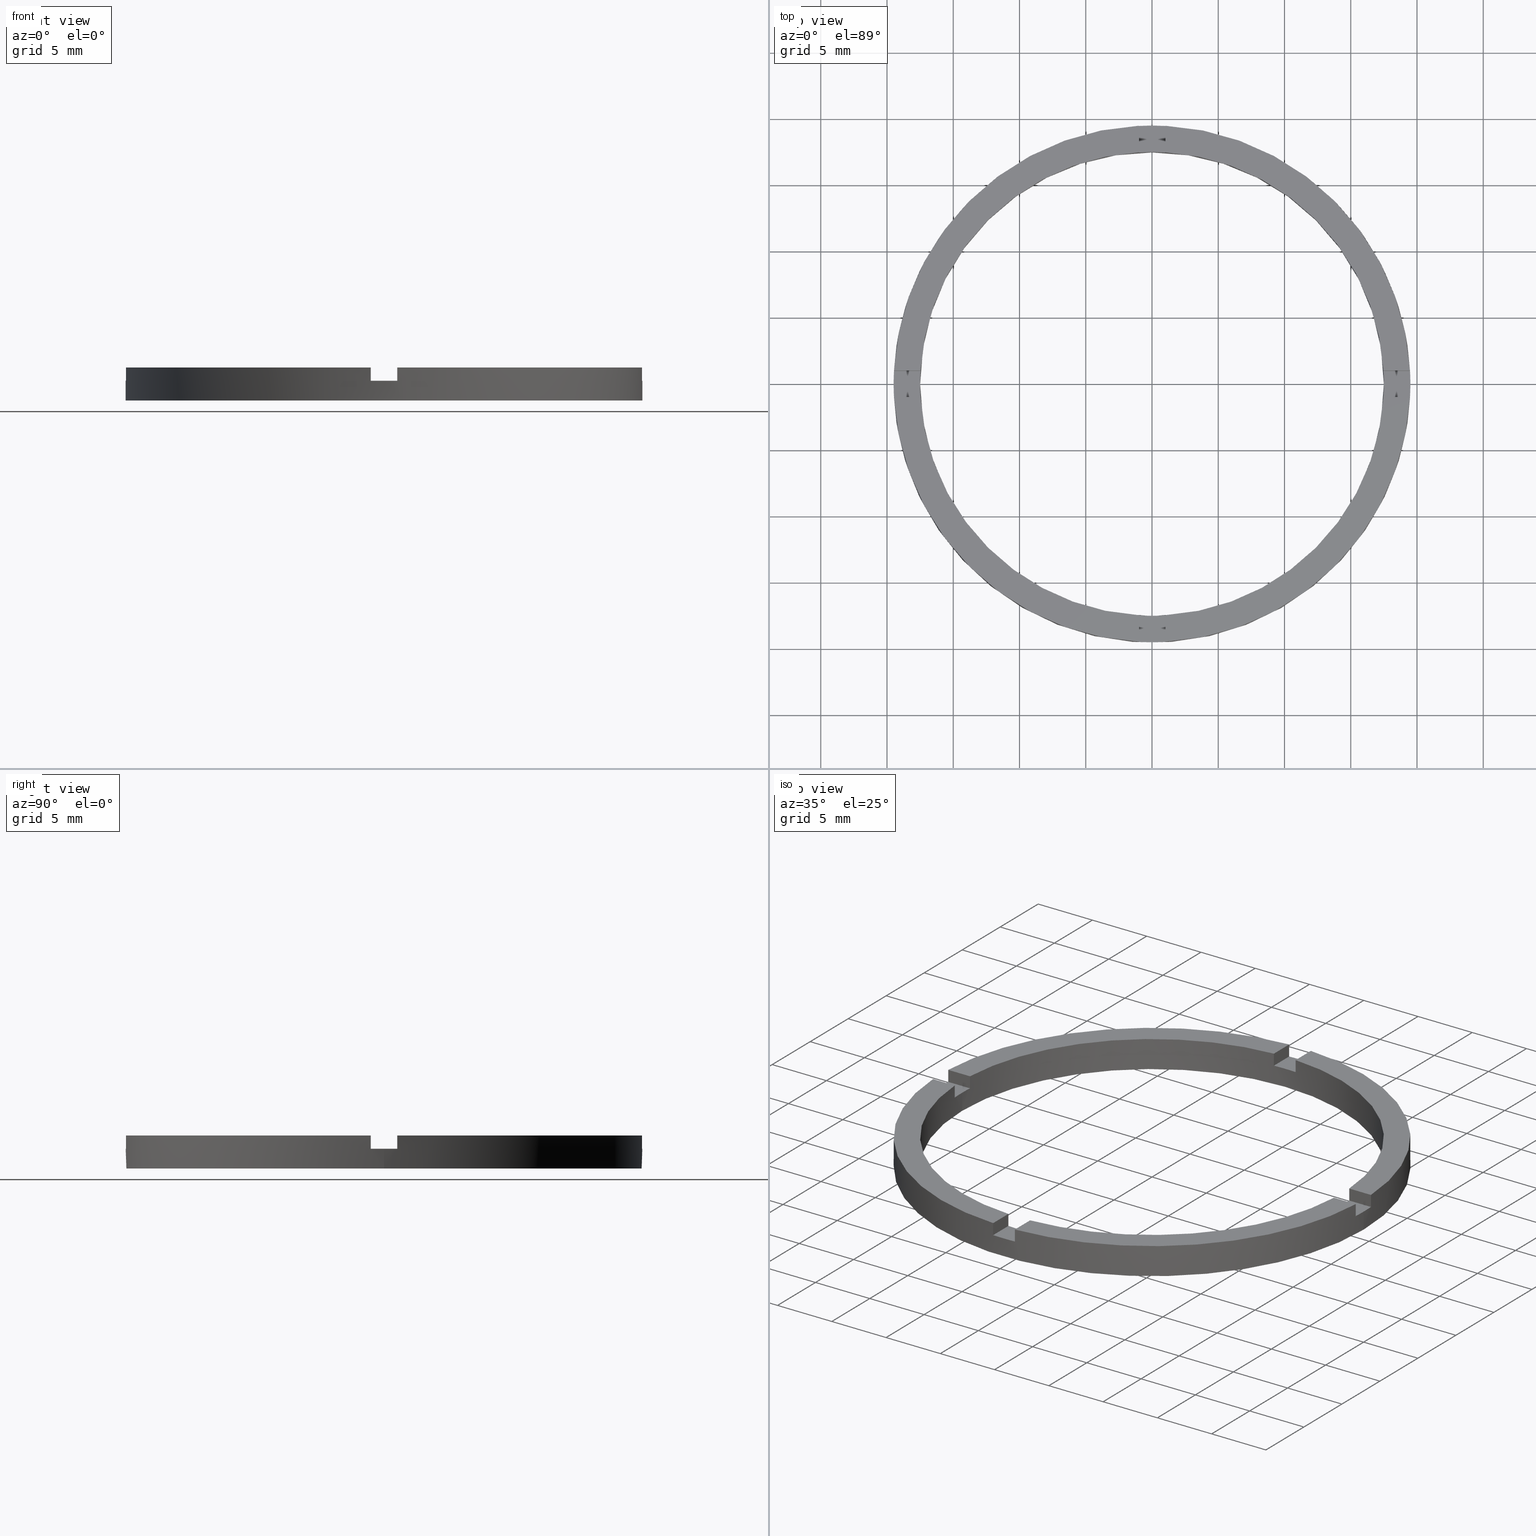
[diagram: canonical four-view strip — front | top / right | iso, engineering-drawing reading convention]
A machine part, canonical four-view strip (front | top / right | iso — engineering-drawing reading convention). The complete STEP part file that produces these views, byte-faithful:
ISO-10303-21;
HEADER;
FILE_DESCRIPTION (( 'STEP AP203' ),
    '1' );
FILE_NAME ('514083.step',
    '2024-12-26T02:35:55',
    ( 'MSI' ),
    ( '' ),
    'SwSTEP 2.0',
    'SolidWorks 2020',
    '' );
FILE_SCHEMA (( 'CONFIG_CONTROL_DESIGN' ));
ENDSEC;

DATA;
#1 = DIRECTION ( 'NONE',  ( 1.000000000000000000, 0.000000000000000000, 0.000000000000000000 ) ) ;
#2 = APPROVAL_PERSON_ORGANIZATION ( #267, #516, #78 ) ;
#3 = EDGE_CURVE ( 'NONE', #455, #92, #60, .T. ) ;
#4 = COORDINATED_UNIVERSAL_TIME_OFFSET ( 8, 0, .AHEAD. ) ;
#5 = DIRECTION ( 'NONE',  ( -1.000000000000000000, 0.000000000000000000, 0.000000000000000000 ) ) ;
#6 = CARTESIAN_POINT ( 'NONE',  ( 0.000000000000000000, 0.000000000000000000, 1.500000000000000000 ) ) ;
#7 = DIRECTION ( 'NONE',  ( -1.000000000000000000, -4.336808689942017120E-17, -0.000000000000000000 ) ) ;
#8 = CARTESIAN_POINT ( 'NONE',  ( 19.50000000000000000, 2.388061258337338939E-15, 2.500000000000000000 ) ) ;
#9 = DIRECTION ( 'NONE',  ( 1.000000000000000000, 0.000000000000000000, 0.000000000000000000 ) ) ;
#10 = DIRECTION ( 'NONE',  ( 0.000000000000000000, 0.000000000000000000, 1.000000000000000000 ) ) ;
#11 = COORDINATED_UNIVERSAL_TIME_OFFSET ( 8, 0, .AHEAD. ) ;
#12 = CARTESIAN_POINT ( 'NONE',  ( 0.000000000000000000, 0.000000000000000000, 2.500000000000000000 ) ) ;
#13 = PERSON_AND_ORGANIZATION ( #398, #776 ) ;
#14 = CARTESIAN_POINT ( 'NONE',  ( 0.000000000000000000, 0.000000000000000000, 1.500000000000000000 ) ) ;
#15 = PLANE ( 'NONE',  #533 ) ;
#16 = EDGE_CURVE ( 'NONE', #455, #639, #582, .T. ) ;
#17 = AXIS2_PLACEMENT_3D ( 'NONE', #35, #449, #145 ) ;
#18 = DIRECTION ( 'NONE',  ( 0.000000000000000000, 0.000000000000000000, 1.000000000000000000 ) ) ;
#19 = CALENDAR_DATE ( 2024, 26, 12 ) ;
#20 = VECTOR ( 'NONE', #324, 1000.000000000000000 ) ;
#21 = CARTESIAN_POINT ( 'NONE',  ( -9.500000000000184741, 0.9999999999999774625, 1.500000000000000000 ) ) ;
#22 = LOCAL_TIME ( 10, 35, 55.00000000000000000, #532 ) ;
#23 = FACE_OUTER_BOUND ( 'NONE', #202, .T. ) ;
#24 = CARTESIAN_POINT ( 'NONE',  ( 19.47434209415045459, 0.9999999999998414602, 1.500000000000000000 ) ) ;
#25 = VECTOR ( 'NONE', #529, 1000.000000000000000 ) ;
#26 = LINE ( 'NONE', #744, #537 ) ;
#27 = DATE_AND_TIME ( #19, #22 ) ;
#28 = EDGE_CURVE ( 'NONE', #725, #525, #576, .T. ) ;
#29 = AXIS2_PLACEMENT_3D ( 'NONE', #540, #491, #243 ) ;
#30 = FACE_OUTER_BOUND ( 'NONE', #382, .T. ) ;
#31 = VECTOR ( 'NONE', #409, 1000.000000000000000 ) ;
#32 = APPROVAL_STATUS ( 'not_yet_approved' ) ;
#33 = VECTOR ( 'NONE', #668, 1000.000000000000000 ) ;
#34 = LINE ( 'NONE', #565, #20 ) ;
#35 = CARTESIAN_POINT ( 'NONE',  ( 0.000000000000000000, 0.000000000000000000, 2.500000000000000000 ) ) ;
#36 = FACE_OUTER_BOUND ( 'NONE', #448, .T. ) ;
#37 = ADVANCED_FACE ( 'NONE', ( #30 ), #269, .T. ) ;
#38 = DIRECTION ( 'NONE',  ( 1.000000000000000000, 0.000000000000000000, -0.000000000000000000 ) ) ;
#39 = LINE ( 'NONE', #74, #292 ) ;
#40 = LINE ( 'NONE', #94, #284 ) ;
#41 = DIRECTION ( 'NONE',  ( -1.734723475976806848E-16, 1.000000000000000000, 0.000000000000000000 ) ) ;
#42 = EDGE_CURVE ( 'NONE', #468, #632, #300, .T. ) ;
#43 = LINE ( 'NONE', #220, #52 ) ;
#44 = VECTOR ( 'NONE', #547, 1000.000000000000000 ) ;
#45 = DIRECTION ( 'NONE',  ( -1.301042606982605074E-16, 1.000000000000000000, -0.000000000000000000 ) ) ;
#46 = CYLINDRICAL_SURFACE ( 'NONE', #452, 19.50000000000000000 ) ;
#47 = DIRECTION ( 'NONE',  ( -1.000000000000000000, 0.000000000000000000, 0.000000000000000000 ) ) ;
#48 = VECTOR ( 'NONE', #690, 1000.000000000000000 ) ;
#49 = VECTOR ( 'NONE', #740, 1000.000000000000000 ) ;
#50 = EDGE_CURVE ( 'NONE', #381, #517, #566, .T. ) ;
#51 = CIRCLE ( 'NONE', #17, 17.50000000000000355 ) ;
#52 = VECTOR ( 'NONE', #583, 1000.000000000000000 ) ;
#53 = CARTESIAN_POINT ( 'NONE',  ( 0.9999999999999742428, 19.47434209415044393, 1.500000000000000000 ) ) ;
#54 = FACE_OUTER_BOUND ( 'NONE', #100, .T. ) ;
#55 = ORIENTED_EDGE ( 'NONE', *, *, #530, .F. ) ;
#56 = ORIENTED_EDGE ( 'NONE', *, *, #489, .F. ) ;
#57 = ORIENTED_EDGE ( 'NONE', *, *, #311, .T. ) ;
#58 = DIRECTION ( 'NONE',  ( 1.000000000000000000, 0.000000000000000000, 0.000000000000000000 ) ) ;
#59 = CC_DESIGN_PERSON_AND_ORGANIZATION_ASSIGNMENT ( #528, #328, ( #162 ) ) ;
#60 = LINE ( 'NONE', #493, #317 ) ;
#61 = DIRECTION ( 'NONE',  ( 1.000000000000000000, 0.000000000000000000, 0.000000000000000000 ) ) ;
#62 = CARTESIAN_POINT ( 'NONE',  ( 0.000000000000000000, 0.000000000000000000, 1.500000000000000000 ) ) ;
#63 = PLANE ( 'NONE',  #588 ) ;
#64 = DIRECTION ( 'NONE',  ( -1.000000000000000000, -4.336808689942017120E-17, -0.000000000000000000 ) ) ;
#65 =( LENGTH_UNIT ( ) NAMED_UNIT ( * ) SI_UNIT ( .MILLI., .METRE. ) );
#66 = CARTESIAN_POINT ( 'NONE',  ( 0.9999999999999742428, 19.47434209415044393, 2.500000000000000000 ) ) ;
#67 = CARTESIAN_POINT ( 'NONE',  ( 0.000000000000000000, 0.000000000000000000, 0.000000000000000000 ) ) ;
#68 = PLANE ( 'NONE',  #640 ) ;
#69 = DIRECTION ( 'NONE',  ( 1.000000000000000000, 0.000000000000000000, -0.000000000000000000 ) ) ;
#70 = DIRECTION ( 'NONE',  ( 1.734723475976806848E-16, -1.000000000000000000, 0.000000000000000000 ) ) ;
#71 = DIRECTION ( 'NONE',  ( 1.000000000000000000, 1.301042606982605074E-16, 0.000000000000000000 ) ) ;
#72 = DIRECTION ( 'NONE',  ( 1.000000000000000000, 0.000000000000000000, 0.000000000000000000 ) ) ;
#73 = PLANE ( 'NONE',  #291 ) ;
#74 = CARTESIAN_POINT ( 'NONE',  ( -19.47434209415044748, 0.9999999999999756861, 2.500000000000000000 ) ) ;
#75 = DIRECTION ( 'NONE',  ( 1.000000000000000000, 0.000000000000000000, 0.000000000000000000 ) ) ;
#76 = PLANE ( 'NONE',  #363 ) ;
#77 = MANIFOLD_SOLID_BREP ( '�г�-����1', #104 ) ;
#78 = APPROVAL_ROLE ( '' ) ;
#79 = CC_DESIGN_PERSON_AND_ORGANIZATION_ASSIGNMENT ( #263, #757, ( #572 ) ) ;
#80 = CARTESIAN_POINT ( 'NONE',  ( 9.499999999999994671, 0.9999999999998411271, 1.500000000000000000 ) ) ;
#81 = AXIS2_PLACEMENT_3D ( 'NONE', #67, #542, #656 ) ;
#82 = CARTESIAN_POINT ( 'NONE',  ( 0.9999999999998369082, -9.500000000000179412, 1.500000000000000000 ) ) ;
#83 = ADVANCED_FACE ( 'NONE', ( #54 ), #523, .T. ) ;
#84 = DIRECTION ( 'NONE',  ( 0.000000000000000000, 0.000000000000000000, 1.000000000000000000 ) ) ;
#85 = DIRECTION ( 'NONE',  ( -0.000000000000000000, -0.000000000000000000, -1.000000000000000000 ) ) ;
#86 = CARTESIAN_POINT ( 'NONE',  ( 0.9999999999998377964, -17.47140520965616162, 2.500000000000000000 ) ) ;
#87 = ORIENTED_EDGE ( 'NONE', *, *, #287, .F. ) ;
#88 = ORIENTED_EDGE ( 'NONE', *, *, #519, .T. ) ;
#89 = DIRECTION ( 'NONE',  ( -0.000000000000000000, -0.000000000000000000, -1.000000000000000000 ) ) ;
#90 = CC_DESIGN_PERSON_AND_ORGANIZATION_ASSIGNMENT ( #496, #623, ( #652 ) ) ;
#91 = VERTEX_POINT ( 'NONE', #157 ) ;
#92 = VERTEX_POINT ( 'NONE', #394 ) ;
#93 = ORIENTED_EDGE ( 'NONE', *, *, #337, .F. ) ;
#94 = CARTESIAN_POINT ( 'NONE',  ( -19.50000000000000000, 0.000000000000000000, 2.500000000000000000 ) ) ;
#95 = EDGE_CURVE ( 'NONE', #372, #250, #555, .T. ) ;
#96 = VERTEX_POINT ( 'NONE', #746 ) ;
#97 = PLANE ( 'NONE',  #758 ) ;
#98 = EDGE_CURVE ( 'NONE', #212, #630, #562, .T. ) ;
#99 = CARTESIAN_POINT ( 'NONE',  ( 17.47140520965614385, -1.000000000000158762, 2.500000000000000000 ) ) ;
#100 = EDGE_LOOP ( 'NONE', ( #738, #175, #384, #618, #433, #649 ) ) ;
#101 = ORIENTED_EDGE ( 'NONE', *, *, #764, .F. ) ;
#102 = ORIENTED_EDGE ( 'NONE', *, *, #98, .F. ) ;
#103 = AXIS2_PLACEMENT_3D ( 'NONE', #617, #348, #5 ) ;
#104 = CLOSED_SHELL ( 'NONE', ( #755, #329, #760, #457, #327, #37, #627, #393, #222, #524, #219, #261, #634, #686, #385, #156, #271, #83, #515, #697, #140 ) ) ;
#105 = CARTESIAN_POINT ( 'NONE',  ( 0.000000000000000000, 0.000000000000000000, 2.500000000000000000 ) ) ;
#106 = ORIENTED_EDGE ( 'NONE', *, *, #662, .F. ) ;
#107 = PRODUCT_RELATED_PRODUCT_CATEGORY ( 'detail', '', ( #652 ) ) ;
#108 = ORIENTED_EDGE ( 'NONE', *, *, #435, .T. ) ;
#109 = VERTEX_POINT ( 'NONE', #444 ) ;
#110 = EDGE_CURVE ( 'NONE', #254, #525, #286, .T. ) ;
#111 = AXIS2_PLACEMENT_3D ( 'NONE', #486, #70, #127 ) ;
#112 = EDGE_LOOP ( 'NONE', ( #660, #115, #734, #643 ) ) ;
#113 = DIRECTION ( 'NONE',  ( 0.000000000000000000, 0.000000000000000000, 1.000000000000000000 ) ) ;
#114 = EDGE_LOOP ( 'NONE', ( #731, #431, #702, #653 ) ) ;
#115 = ORIENTED_EDGE ( 'NONE', *, *, #213, .F. ) ;
#116 = DIRECTION ( 'NONE',  ( 1.000000000000000000, -0.000000000000000000, 0.000000000000000000 ) ) ;
#117 = CARTESIAN_POINT ( 'NONE',  ( 0.000000000000000000, 0.000000000000000000, 2.500000000000000000 ) ) ;
#118 = ORIENTED_EDGE ( 'NONE', *, *, #28, .T. ) ;
#119 = VERTEX_POINT ( 'NONE', #775 ) ;
#120 = DIRECTION ( 'NONE',  ( 0.000000000000000000, 0.000000000000000000, 1.000000000000000000 ) ) ;
#121 = CARTESIAN_POINT ( 'NONE',  ( -19.47434209415044748, 0.9999999999999756861, 1.500000000000000000 ) ) ;
#122 = ORIENTED_EDGE ( 'NONE', *, *, #699, .T. ) ;
#123 = ORIENTED_EDGE ( 'NONE', *, *, #601, .F. ) ;
#124 = DIRECTION ( 'NONE',  ( 1.000000000000000000, 0.000000000000000000, 0.000000000000000000 ) ) ;
#125 = AXIS2_PLACEMENT_3D ( 'NONE', #312, #391, #72 ) ;
#126 = ORIENTED_EDGE ( 'NONE', *, *, #459, .F. ) ;
#127 = DIRECTION ( 'NONE',  ( 1.000000000000000000, 1.734723475976806848E-16, 0.000000000000000000 ) ) ;
#128 = ORIENTED_EDGE ( 'NONE', *, *, #743, .F. ) ;
#129 = ORIENTED_EDGE ( 'NONE', *, *, #592, .F. ) ;
#130 = DIRECTION ( 'NONE',  ( 1.000000000000000000, 0.000000000000000000, 0.000000000000000000 ) ) ;
#131 = CARTESIAN_POINT ( 'NONE',  ( -9.500000000000184741, -1.000000000000022649, 2.500000000000000000 ) ) ;
#132 = DIRECTION ( 'NONE',  ( 0.000000000000000000, 0.000000000000000000, 1.000000000000000000 ) ) ;
#133 = DIRECTION ( 'NONE',  ( 0.000000000000000000, 0.000000000000000000, 1.000000000000000000 ) ) ;
#134 = DIRECTION ( 'NONE',  ( 0.000000000000000000, 0.000000000000000000, -1.000000000000000000 ) ) ;
#135 = CARTESIAN_POINT ( 'NONE',  ( 0.000000000000000000, 0.000000000000000000, 1.500000000000000000 ) ) ;
#136 = DIRECTION ( 'NONE',  ( -0.000000000000000000, -0.000000000000000000, -1.000000000000000000 ) ) ;
#137 = ORIENTED_EDGE ( 'NONE', *, *, #485, .F. ) ;
#138 = CC_DESIGN_PERSON_AND_ORGANIZATION_ASSIGNMENT ( #502, #753, ( #584 ) ) ;
#139 = CARTESIAN_POINT ( 'NONE',  ( 0.000000000000000000, 0.000000000000000000, 2.500000000000000000 ) ) ;
#140 = ADVANCED_FACE ( 'NONE', ( #551 ), #76, .T. ) ;
#141 = LINE ( 'NONE', #322, #399 ) ;
#142 = VECTOR ( 'NONE', #215, 1000.000000000000000 ) ;
#143 = PERSON_AND_ORGANIZATION_ROLE ( 'design_supplier' ) ;
#144 = VECTOR ( 'NONE', #406, 1000.000000000000000 ) ;
#145 = DIRECTION ( 'NONE',  ( 1.000000000000000000, 0.000000000000000000, 0.000000000000000000 ) ) ;
#146 = ORIENTED_EDGE ( 'NONE', *, *, #498, .T. ) ;
#147 = VECTOR ( 'NONE', #277, 1000.000000000000000 ) ;
#148 = AXIS2_PLACEMENT_3D ( 'NONE', #559, #608, #595 ) ;
#149 = CIRCLE ( 'NONE', #677, 17.50000000000000355 ) ;
#150 = DIRECTION ( 'NONE',  ( 0.000000000000000000, 1.000000000000000000, 0.000000000000000000 ) ) ;
#151 = CIRCLE ( 'NONE', #730, 19.50000000000000000 ) ;
#152 = CC_DESIGN_APPROVAL ( #516, ( #162 ) ) ;
#153 = CIRCLE ( 'NONE', #81, 19.50000000000000000 ) ;
#154 = FACE_OUTER_BOUND ( 'NONE', #246, .T. ) ;
#155 = AXIS2_PLACEMENT_3D ( 'NONE', #80, #383, #513 ) ;
#156 = ADVANCED_FACE ( 'NONE', ( #544 ), #326, .F. ) ;
#157 = CARTESIAN_POINT ( 'NONE',  ( -19.47434209415044748, -1.000000000000024203, 1.500000000000000000 ) ) ;
#158 = FACE_OUTER_BOUND ( 'NONE', #112, .T. ) ;
#159 = CYLINDRICAL_SURFACE ( 'NONE', #334, 19.50000000000000000 ) ;
#160 = CIRCLE ( 'NONE', #166, 17.50000000000000355 ) ;
#161 = VECTOR ( 'NONE', #230, 1000.000000000000000 ) ;
#162 = SECURITY_CLASSIFICATION ( '', '', #456 ) ;
#163 = CIRCLE ( 'NONE', #752, 19.50000000000000000 ) ;
#164 = FACE_OUTER_BOUND ( 'NONE', #114, .T. ) ;
#165 = EDGE_CURVE ( 'NONE', #358, #468, #571, .T. ) ;
#166 = AXIS2_PLACEMENT_3D ( 'NONE', #483, #400, #58 ) ;
#167 = FACE_OUTER_BOUND ( 'NONE', #510, .T. ) ;
#168 = ORIENTED_EDGE ( 'NONE', *, *, #708, .F. ) ;
#169 = VECTOR ( 'NONE', #721, 1000.000000000000000 ) ;
#170 = EDGE_LOOP ( 'NONE', ( #346, #218, #726, #211 ) ) ;
#171 = CIRCLE ( 'NONE', #471, 19.50000000000000000 ) ;
#172 = LINE ( 'NONE', #283, #421 ) ;
#173 = VERTEX_POINT ( 'NONE', #518 ) ;
#174 = VECTOR ( 'NONE', #187, 1000.000000000000000 ) ;
#175 = ORIENTED_EDGE ( 'NONE', *, *, #729, .T. ) ;
#176 = CYLINDRICAL_SURFACE ( 'NONE', #103, 17.50000000000000355 ) ;
#177 = DIRECTION ( 'NONE',  ( 1.000000000000000000, 0.000000000000000000, 0.000000000000000000 ) ) ;
#178 = VERTEX_POINT ( 'NONE', #756 ) ;
#179 = CARTESIAN_POINT ( 'NONE',  ( 19.47434209415044037, -1.000000000000158540, 1.500000000000000000 ) ) ;
#180 = ORIENTED_EDGE ( 'NONE', *, *, #338, .T. ) ;
#181 = CARTESIAN_POINT ( 'NONE',  ( -1.000000000000025313, 9.500000000000000000, 2.500000000000000000 ) ) ;
#182 = ORIENTED_EDGE ( 'NONE', *, *, #245, .F. ) ;
#183 = AXIS2_PLACEMENT_3D ( 'NONE', #536, #201, #682 ) ;
#184 = ORIENTED_EDGE ( 'NONE', *, *, #3, .F. ) ;
#185 = DIRECTION ( 'NONE',  ( 0.000000000000000000, 0.000000000000000000, 1.000000000000000000 ) ) ;
#186 = EDGE_LOOP ( 'NONE', ( #700, #479, #106, #184 ) ) ;
#187 = DIRECTION ( 'NONE',  ( 0.000000000000000000, 0.000000000000000000, 1.000000000000000000 ) ) ;
#188 = CARTESIAN_POINT ( 'NONE',  ( 0.000000000000000000, 0.000000000000000000, 1.500000000000000000 ) ) ;
#189 = ORIENTED_EDGE ( 'NONE', *, *, #245, .T. ) ;
#190 = ORIENTED_EDGE ( 'NONE', *, *, #3, .T. ) ;
#191 = CARTESIAN_POINT ( 'NONE',  ( -17.50000000000000355, 0.000000000000000000, 0.000000000000000000 ) ) ;
#192 = ORIENTED_EDGE ( 'NONE', *, *, #214, .F. ) ;
#193 = DIRECTION ( 'NONE',  ( -0.000000000000000000, -0.000000000000000000, -1.000000000000000000 ) ) ;
#194 = CARTESIAN_POINT ( 'NONE',  ( 0.9999999999999742428, 17.47140520965614741, 1.500000000000000000 ) ) ;
#195 = ORIENTED_EDGE ( 'NONE', *, *, #459, .T. ) ;
#196 = CC_DESIGN_APPROVAL ( #239, ( #572 ) ) ;
#197 = ORIENTED_EDGE ( 'NONE', *, *, #714, .T. ) ;
#198 = DIRECTION ( 'NONE',  ( -0.000000000000000000, 0.000000000000000000, 1.000000000000000000 ) ) ;
#199 = ORIENTED_EDGE ( 'NONE', *, *, #714, .F. ) ;
#200 = ORIENTED_EDGE ( 'NONE', *, *, #325, .T. ) ;
#201 = DIRECTION ( 'NONE',  ( 0.000000000000000000, 0.000000000000000000, 1.000000000000000000 ) ) ;
#202 = EDGE_LOOP ( 'NONE', ( #638, #475, #616, #648 ) ) ;
#203 = AXIS2_PLACEMENT_3D ( 'NONE', #105, #113, #727 ) ;
#204 = VERTEX_POINT ( 'NONE', #205 ) ;
#205 = CARTESIAN_POINT ( 'NONE',  ( -17.50000000000000355, 0.000000000000000000, 1.500000000000000000 ) ) ;
#206 = ORIENTED_EDGE ( 'NONE', *, *, #50, .T. ) ;
#207 = ORIENTED_EDGE ( 'NONE', *, *, #221, .T. ) ;
#208 = CARTESIAN_POINT ( 'NONE',  ( 0.9999999999998369082, -9.500000000000179412, 2.500000000000000000 ) ) ;
#209 = ORIENTED_EDGE ( 'NONE', *, *, #717, .T. ) ;
#210 = ORIENTED_EDGE ( 'NONE', *, *, #754, .F. ) ;
#211 = ORIENTED_EDGE ( 'NONE', *, *, #707, .F. ) ;
#212 = VERTEX_POINT ( 'NONE', #368 ) ;
#213 = EDGE_CURVE ( 'NONE', #347, #725, #51, .T. ) ;
#214 = EDGE_CURVE ( 'NONE', #705, #381, #43, .T. ) ;
#215 = DIRECTION ( 'NONE',  ( -1.301042606982605074E-16, 1.000000000000000000, -0.000000000000000000 ) ) ;
#216 = ORIENTED_EDGE ( 'NONE', *, *, #526, .T. ) ;
#217 = VERTEX_POINT ( 'NONE', #268 ) ;
#218 = ORIENTED_EDGE ( 'NONE', *, *, #16, .T. ) ;
#219 = ADVANCED_FACE ( 'NONE', ( #294 ), #759, .F. ) ;
#220 = CARTESIAN_POINT ( 'NONE',  ( -9.500000000000184741, 0.9999999999999774625, 1.500000000000000000 ) ) ;
#221 = EDGE_CURVE ( 'NONE', #381, #639, #39, .T. ) ;
#222 = ADVANCED_FACE ( 'NONE', ( #305 ), #293, .F. ) ;
#223 = AXIS2_PLACEMENT_3D ( 'NONE', #314, #508, #75 ) ;
#224 = CARTESIAN_POINT ( 'NONE',  ( -1.000000000000024869, 17.47140520965614741, 1.500000000000000000 ) ) ;
#225 = DIRECTION ( 'NONE',  ( -0.000000000000000000, -0.000000000000000000, -1.000000000000000000 ) ) ;
#226 = DESIGN_CONTEXT ( 'detailed design', #575, 'design' ) ;
#227 = EDGE_CURVE ( 'NONE', #119, #639, #34, .T. ) ;
#228 = AXIS2_PLACEMENT_3D ( 'NONE', #636, #84, #318 ) ;
#229 = CARTESIAN_POINT ( 'NONE',  ( 0.000000000000000000, 0.000000000000000000, 2.500000000000000000 ) ) ;
#230 = DIRECTION ( 'NONE',  ( 1.000000000000000000, 4.336808689942017120E-17, 0.000000000000000000 ) ) ;
#231 = PERSON_AND_ORGANIZATION ( #398, #776 ) ;
#232 = DIRECTION ( 'NONE',  ( -0.000000000000000000, -0.000000000000000000, -1.000000000000000000 ) ) ;
#233 = CALENDAR_DATE ( 2024, 26, 12 ) ;
#234 = DATE_AND_TIME ( #233, #766 ) ;
#235 = VERTEX_POINT ( 'NONE', #375 ) ;
#236 = EDGE_CURVE ( 'NONE', #715, #720, #564, .T. ) ;
#237 = CARTESIAN_POINT ( 'NONE',  ( 17.47140520965614385, -1.000000000000158762, 2.500000000000000000 ) ) ;
#238 = CARTESIAN_POINT ( 'NONE',  ( -1.000000000000162981, -9.500000000000179412, 1.500000000000000000 ) ) ;
#239 = APPROVAL ( #512, 'δָ��' ) ;
#240 = DIRECTION ( 'NONE',  ( 0.000000000000000000, 0.000000000000000000, 1.000000000000000000 ) ) ;
#241 = ORIENTED_EDGE ( 'NONE', *, *, #519, .F. ) ;
#242 = CARTESIAN_POINT ( 'NONE',  ( -1.000000000000024869, 17.47140520965614741, 2.500000000000000000 ) ) ;
#243 = DIRECTION ( 'NONE',  ( 1.000000000000000000, 0.000000000000000000, 0.000000000000000000 ) ) ;
#244 = CARTESIAN_POINT ( 'NONE',  ( 0.9999999999998369082, -9.500000000000179412, 1.500000000000000000 ) ) ;
#245 = EDGE_CURVE ( 'NONE', #614, #310, #279, .T. ) ;
#246 = EDGE_LOOP ( 'NONE', ( #102, #355, #691, #123, #633, #129, #351, #695, #514, #93, #200, #718 ) ) ;
#247 = VERTEX_POINT ( 'NONE', #467 ) ;
#248 =( NAMED_UNIT ( * ) PLANE_ANGLE_UNIT ( ) SI_UNIT ( $, .RADIAN. ) );
#249 = CC_DESIGN_APPROVAL ( #722, ( #584 ) ) ;
#250 = VERTEX_POINT ( 'NONE', #224 ) ;
#251 = CARTESIAN_POINT ( 'NONE',  ( -17.47140520965615096, -1.000000000000023981, 2.500000000000000000 ) ) ;
#252 = DIRECTION ( 'NONE',  ( 1.000000000000000000, 0.000000000000000000, 0.000000000000000000 ) ) ;
#253 = DATE_AND_TIME ( #783, #780 ) ;
#254 = VERTEX_POINT ( 'NONE', #53 ) ;
#255 = DIRECTION ( 'NONE',  ( 0.000000000000000000, 0.000000000000000000, 1.000000000000000000 ) ) ;
#256 = CARTESIAN_POINT ( 'NONE',  ( 0.000000000000000000, 0.000000000000000000, 2.500000000000000000 ) ) ;
#257 = DIRECTION ( 'NONE',  ( 0.000000000000000000, 0.000000000000000000, 1.000000000000000000 ) ) ;
#258 = EDGE_CURVE ( 'NONE', #178, #632, #290, .T. ) ;
#259 = AXIS2_PLACEMENT_3D ( 'NONE', #742, #558, #549 ) ;
#260 = DIRECTION ( 'NONE',  ( 0.000000000000000000, -0.000000000000000000, 1.000000000000000000 ) ) ;
#261 = ADVANCED_FACE ( 'NONE', ( #280 ), #323, .T. ) ;
#262 = DIRECTION ( 'NONE',  ( 1.000000000000000000, 0.000000000000000000, 0.000000000000000000 ) ) ;
#263 = PERSON_AND_ORGANIZATION ( #398, #776 ) ;
#264 = EDGE_CURVE ( 'NONE', #465, #580, #548, .T. ) ;
#265 = MECHANICAL_CONTEXT ( 'NONE', #563, 'mechanical' ) ;
#266 = AXIS2_PLACEMENT_3D ( 'NONE', #501, #611, #676 ) ;
#267 = PERSON_AND_ORGANIZATION ( #398, #776 ) ;
#268 = CARTESIAN_POINT ( 'NONE',  ( 17.50000000000000355, 2.143131898507868643E-15, 1.500000000000000000 ) ) ;
#269 = PLANE ( 'NONE',  #521 ) ;
#270 = CALENDAR_DATE ( 2024, 26, 12 ) ;
#271 = ADVANCED_FACE ( 'NONE', ( #574 ), #446, .F. ) ;
#272 = CALENDAR_DATE ( 2024, 26, 12 ) ;
#273 = EDGE_CURVE ( 'NONE', #217, #247, #552, .T. ) ;
#274 = DATE_AND_TIME ( #272, #541 ) ;
#275 = VECTOR ( 'NONE', #704, 1000.000000000000000 ) ;
#276 = APPROVAL_DATE_TIME ( #274, #516 ) ;
#277 = DIRECTION ( 'NONE',  ( 0.000000000000000000, 0.000000000000000000, 1.000000000000000000 ) ) ;
#278 =( GEOMETRIC_REPRESENTATION_CONTEXT ( 3 ) GLOBAL_UNCERTAINTY_ASSIGNED_CONTEXT ( ( #441 ) ) GLOBAL_UNIT_ASSIGNED_CONTEXT ( ( #65, #248, #751 ) ) REPRESENTATION_CONTEXT ( 'NONE', 'WORKASPACE' ) );
#279 = LINE ( 'NONE', #772, #282 ) ;
#280 = FACE_OUTER_BOUND ( 'NONE', #778, .T. ) ;
#281 = LOCAL_TIME ( 10, 35, 55.00000000000000000, #11 ) ;
#282 = VECTOR ( 'NONE', #586, 1000.000000000000000 ) ;
#283 = CARTESIAN_POINT ( 'NONE',  ( -9.500000000000184741, -1.000000000000022649, 1.500000000000000000 ) ) ;
#284 = VECTOR ( 'NONE', #225, 1000.000000000000000 ) ;
#285 = EDGE_CURVE ( 'NONE', #455, #372, #297, .T. ) ;
#286 = LINE ( 'NONE', #590, #25 ) ;
#287 = EDGE_CURVE ( 'NONE', #520, #109, #573, .T. ) ;
#288 = VECTOR ( 'NONE', #749, 1000.000000000000000 ) ;
#289 = CARTESIAN_POINT ( 'NONE',  ( 0.000000000000000000, 0.000000000000000000, 0.000000000000000000 ) ) ;
#290 = LINE ( 'NONE', #86, #275 ) ;
#291 = AXIS2_PLACEMENT_3D ( 'NONE', #256, #424, #488 ) ;
#292 = VECTOR ( 'NONE', #607, 1000.000000000000000 ) ;
#293 = CYLINDRICAL_SURFACE ( 'NONE', #612, 17.50000000000000355 ) ;
#294 = FACE_OUTER_BOUND ( 'NONE', #644, .T. ) ;
#295 = DIRECTION ( 'NONE',  ( -1.000000000000000000, 0.000000000000000000, 0.000000000000000000 ) ) ;
#296 = DIRECTION ( 'NONE',  ( 1.000000000000000000, 0.000000000000000000, -0.000000000000000000 ) ) ;
#297 = LINE ( 'NONE', #181, #31 ) ;
#298 = AXIS2_PLACEMENT_3D ( 'NONE', #117, #349, #724 ) ;
#299 = FACE_OUTER_BOUND ( 'NONE', #362, .T. ) ;
#300 = LINE ( 'NONE', #82, #557 ) ;
#301 = VECTOR ( 'NONE', #357, 1000.000000000000000 ) ;
#302 = DIRECTION ( 'NONE',  ( 1.000000000000000000, 0.000000000000000000, 0.000000000000000000 ) ) ;
#303 = LINE ( 'NONE', #600, #301 ) ;
#304 = VECTOR ( 'NONE', #64, 1000.000000000000000 ) ;
#305 = FACE_OUTER_BOUND ( 'NONE', #635, .T. ) ;
#306 = CARTESIAN_POINT ( 'NONE',  ( -17.47140520965615096, 0.9999999999999761302, 1.500000000000000000 ) ) ;
#307 = DIRECTION ( 'NONE',  ( 0.000000000000000000, 1.000000000000000000, 0.000000000000000000 ) ) ;
#308 = VECTOR ( 'NONE', #307, 1000.000000000000000 ) ;
#309 = DIRECTION ( 'NONE',  ( 0.000000000000000000, 0.000000000000000000, 1.000000000000000000 ) ) ;
#310 = VERTEX_POINT ( 'NONE', #594 ) ;
#311 = EDGE_CURVE ( 'NONE', #366, #254, #560, .T. ) ;
#312 = CARTESIAN_POINT ( 'NONE',  ( 0.000000000000000000, 0.000000000000000000, 2.500000000000000000 ) ) ;
#313 = ORIENTED_EDGE ( 'NONE', *, *, #110, .F. ) ;
#314 = CARTESIAN_POINT ( 'NONE',  ( 0.000000000000000000, 0.000000000000000000, 2.500000000000000000 ) ) ;
#315 = ORIENTED_EDGE ( 'NONE', *, *, #388, .F. ) ;
#316 = CARTESIAN_POINT ( 'NONE',  ( -19.47434209415044748, 0.9999999999999756861, 2.500000000000000000 ) ) ;
#317 = VECTOR ( 'NONE', #89, 1000.000000000000000 ) ;
#318 = DIRECTION ( 'NONE',  ( 1.000000000000000000, 0.000000000000000000, -0.000000000000000000 ) ) ;
#319 = CARTESIAN_POINT ( 'NONE',  ( -17.47140520965615096, -1.000000000000023981, 1.500000000000000000 ) ) ;
#320 = DIRECTION ( 'NONE',  ( -0.000000000000000000, -0.000000000000000000, -1.000000000000000000 ) ) ;
#321 = CARTESIAN_POINT ( 'NONE',  ( -19.50000000000000000, 0.000000000000000000, 0.000000000000000000 ) ) ;
#322 = CARTESIAN_POINT ( 'NONE',  ( -19.47434209415044748, -1.000000000000024203, 2.500000000000000000 ) ) ;
#323 = PLANE ( 'NONE',  #774 ) ;
#324 = DIRECTION ( 'NONE',  ( -1.000000000000000000, -1.734723475976806848E-16, 0.000000000000000000 ) ) ;
#325 = EDGE_CURVE ( 'NONE', #517, #657, #40, .T. ) ;
#326 = PLANE ( 'NONE',  #155 ) ;
#327 = ADVANCED_FACE ( 'NONE', ( #36 ), #605, .T. ) ;
#328 = PERSON_AND_ORGANIZATION_ROLE ( 'classification_officer' ) ;
#329 = ADVANCED_FACE ( 'NONE', ( #299 ), #46, .T. ) ;
#330 = EDGE_CURVE ( 'NONE', #109, #310, #303, .T. ) ;
#331 = AXIS2_PLACEMENT_3D ( 'NONE', #420, #198, #302 ) ;
#332 = DIRECTION ( 'NONE',  ( -1.000000000000000000, -1.734723475976806848E-16, 0.000000000000000000 ) ) ;
#333 = DIRECTION ( 'NONE',  ( -0.000000000000000000, -0.000000000000000000, -1.000000000000000000 ) ) ;
#334 = AXIS2_PLACEMENT_3D ( 'NONE', #645, #85, #47 ) ;
#335 = DIRECTION ( 'NONE',  ( 1.000000000000000000, 1.734723475976806848E-16, -0.000000000000000000 ) ) ;
#336 = CARTESIAN_POINT ( 'NONE',  ( 9.499999999999994671, -1.000000000000158984, 1.500000000000000000 ) ) ;
#337 = EDGE_CURVE ( 'NONE', #517, #91, #568, .T. ) ;
#338 = EDGE_CURVE ( 'NONE', #204, #379, #534, .T. ) ;
#339 = DIRECTION ( 'NONE',  ( 0.000000000000000000, 0.000000000000000000, 1.000000000000000000 ) ) ;
#340 = CARTESIAN_POINT ( 'NONE',  ( 19.50000000000000000, 2.388061258337338939E-15, 0.000000000000000000 ) ) ;
#341 = AXIS2_PLACEMENT_3D ( 'NONE', #670, #747, #130 ) ;
#342 = ORIENTED_EDGE ( 'NONE', *, *, #782, .F. ) ;
#343 = DIRECTION ( 'NONE',  ( -1.000000000000000000, 0.000000000000000000, 0.000000000000000000 ) ) ;
#344 = EDGE_LOOP ( 'NONE', ( #56, #209, #378, #710 ) ) ;
#345 = ORIENTED_EDGE ( 'NONE', *, *, #258, .F. ) ;
#346 = ORIENTED_EDGE ( 'NONE', *, *, #285, .F. ) ;
#347 = VERTEX_POINT ( 'NONE', #425 ) ;
#348 = DIRECTION ( 'NONE',  ( -0.000000000000000000, -0.000000000000000000, -1.000000000000000000 ) ) ;
#349 = DIRECTION ( 'NONE',  ( 0.000000000000000000, 0.000000000000000000, 1.000000000000000000 ) ) ;
#350 = ORIENTED_EDGE ( 'NONE', *, *, #581, .F. ) ;
#351 = ORIENTED_EDGE ( 'NONE', *, *, #330, .T. ) ;
#352 = CARTESIAN_POINT ( 'NONE',  ( 0.000000000000000000, 0.000000000000000000, 2.500000000000000000 ) ) ;
#353 = EDGE_LOOP ( 'NONE', ( #651, #458, #315, #712 ) ) ;
#354 = CARTESIAN_POINT ( 'NONE',  ( 0.000000000000000000, 0.000000000000000000, 1.500000000000000000 ) ) ;
#355 = ORIENTED_EDGE ( 'NONE', *, *, #569, .F. ) ;
#356 = CARTESIAN_POINT ( 'NONE',  ( 0.9999999999999742428, 17.47140520965614741, 2.500000000000000000 ) ) ;
#357 = DIRECTION ( 'NONE',  ( 0.000000000000000000, 0.000000000000000000, 1.000000000000000000 ) ) ;
#358 = VERTEX_POINT ( 'NONE', #664 ) ;
#359 = EDGE_LOOP ( 'NONE', ( #87, #216, #189, #625 ) ) ;
#360 = CARTESIAN_POINT ( 'NONE',  ( -1.000000000000161871, -17.47140520965614030, 1.500000000000000000 ) ) ;
#361 = DIRECTION ( 'NONE',  ( -1.301042606982605074E-16, 1.000000000000000000, 0.000000000000000000 ) ) ;
#362 = EDGE_LOOP ( 'NONE', ( #637, #683, #687, #773, #371, #207, #470, #190, #723, #693, #137, #466 ) ) ;
#363 = AXIS2_PLACEMENT_3D ( 'NONE', #556, #260, #389 ) ;
#364 = ORIENTED_EDGE ( 'NONE', *, *, #764, .T. ) ;
#365 = DIRECTION ( 'NONE',  ( -0.000000000000000000, -0.000000000000000000, -1.000000000000000000 ) ) ;
#366 = VERTEX_POINT ( 'NONE', #194 ) ;
#367 = ORIENTED_EDGE ( 'NONE', *, *, #717, .F. ) ;
#368 = CARTESIAN_POINT ( 'NONE',  ( 19.50000000000000000, 2.388061258337338939E-15, 1.500000000000000000 ) ) ;
#369 = CARTESIAN_POINT ( 'NONE',  ( -1.000000000000025313, 9.500000000000000000, 1.500000000000000000 ) ) ;
#370 = DIRECTION ( 'NONE',  ( -0.000000000000000000, -1.000000000000000000, -0.000000000000000000 ) ) ;
#371 = ORIENTED_EDGE ( 'NONE', *, *, #50, .F. ) ;
#372 = VERTEX_POINT ( 'NONE', #242 ) ;
#373 = ORIENTED_EDGE ( 'NONE', *, *, #390, .F. ) ;
#374 = EDGE_LOOP ( 'NONE', ( #771, #477, #126, #128 ) ) ;
#375 = CARTESIAN_POINT ( 'NONE',  ( 19.47434209415044037, -1.000000000000158540, 2.500000000000000000 ) ) ;
#376 = DIRECTION ( 'NONE',  ( 0.000000000000000000, 0.000000000000000000, 1.000000000000000000 ) ) ;
#377 = EDGE_CURVE ( 'NONE', #715, #347, #543, .T. ) ;
#378 = ORIENTED_EDGE ( 'NONE', *, *, #587, .T. ) ;
#379 = VERTEX_POINT ( 'NONE', #191 ) ;
#380 = APPROVAL_ROLE ( '' ) ;
#381 = VERTEX_POINT ( 'NONE', #121 ) ;
#382 = EDGE_LOOP ( 'NONE', ( #182, #101, #461, #122 ) ) ;
#383 = DIRECTION ( 'NONE',  ( -4.336808689942017120E-17, 1.000000000000000000, 0.000000000000000000 ) ) ;
#384 = ORIENTED_EDGE ( 'NONE', *, *, #388, .T. ) ;
#385 = ADVANCED_FACE ( 'NONE', ( #23 ), #429, .T. ) ;
#386 = DATE_TIME_ROLE ( 'creation_date' ) ;
#387 = ORIENTED_EDGE ( 'NONE', *, *, #782, .T. ) ;
#388 = EDGE_CURVE ( 'NONE', #720, #247, #26, .T. ) ;
#389 = DIRECTION ( 'NONE',  ( 1.000000000000000000, 0.000000000000000000, -0.000000000000000000 ) ) ;
#390 = EDGE_CURVE ( 'NONE', #657, #630, #153, .T. ) ;
#391 = DIRECTION ( 'NONE',  ( 0.000000000000000000, 0.000000000000000000, 1.000000000000000000 ) ) ;
#392 = AXIS2_PLACEMENT_3D ( 'NONE', #497, #133, #252 ) ;
#393 = ADVANCED_FACE ( 'NONE', ( #154 ), #159, .T. ) ;
#394 = CARTESIAN_POINT ( 'NONE',  ( -1.000000000000024869, 19.47434209415044393, 1.500000000000000000 ) ) ;
#395 = AXIS2_PLACEMENT_3D ( 'NONE', #188, #10, #61 ) ;
#396 = CARTESIAN_POINT ( 'NONE',  ( 19.47434209415044037, -1.000000000000158540, 2.500000000000000000 ) ) ;
#397 = CIRCLE ( 'NONE', #392, 17.50000000000000355 ) ;
#398 = PERSON ( 'δָ��', 'δָ��', 'δָ��', ('δָ��'), ('δָ��'), ('δָ��') ) ;
#399 = VECTOR ( 'NONE', #732, 1000.000000000000000 ) ;
#400 = DIRECTION ( 'NONE',  ( 0.000000000000000000, -0.000000000000000000, 1.000000000000000000 ) ) ;
#401 = LINE ( 'NONE', #553, #671 ) ;
#402 = VECTOR ( 'NONE', #416, 1000.000000000000000 ) ;
#403 = CIRCLE ( 'NONE', #331, 17.50000000000000355 ) ;
#404 = AXIS2_PLACEMENT_3D ( 'NONE', #354, #492, #602 ) ;
#405 = CIRCLE ( 'NONE', #481, 19.50000000000000000 ) ;
#406 = DIRECTION ( 'NONE',  ( 1.000000000000000000, 4.336808689942017120E-17, 0.000000000000000000 ) ) ;
#407 = FACE_OUTER_BOUND ( 'NONE', #733, .T. ) ;
#408 = LINE ( 'NONE', #654, #169 ) ;
#409 = DIRECTION ( 'NONE',  ( -0.000000000000000000, -1.000000000000000000, -0.000000000000000000 ) ) ;
#410 = CIRCLE ( 'NONE', #29, 19.50000000000000000 ) ;
#411 = CARTESIAN_POINT ( 'NONE',  ( 0.9999999999998373523, -17.47140520965615806, 1.500000000000000000 ) ) ;
#412 = CARTESIAN_POINT ( 'NONE',  ( 0.000000000000000000, 0.000000000000000000, 2.500000000000000000 ) ) ;
#413 = EDGE_LOOP ( 'NONE', ( #453, #622, #579, #57 ) ) ;
#414 = CIRCLE ( 'NONE', #655, 19.50000000000000000 ) ;
#415 = VECTOR ( 'NONE', #309, 1000.000000000000000 ) ;
#416 = DIRECTION ( 'NONE',  ( 0.000000000000000000, 0.000000000000000000, 1.000000000000000000 ) ) ;
#417 = ORIENTED_EDGE ( 'NONE', *, *, #530, .T. ) ;
#418 = FACE_OUTER_BOUND ( 'NONE', #186, .T. ) ;
#419 = FACE_OUTER_BOUND ( 'NONE', #374, .T. ) ;
#420 = CARTESIAN_POINT ( 'NONE',  ( 0.000000000000000000, 0.000000000000000000, 1.500000000000000000 ) ) ;
#421 = VECTOR ( 'NONE', #335, 1000.000000000000000 ) ;
#422 = ORIENTED_EDGE ( 'NONE', *, *, #647, .T. ) ;
#423 = FACE_OUTER_BOUND ( 'NONE', #620, .T. ) ;
#424 = DIRECTION ( 'NONE',  ( 0.000000000000000000, 0.000000000000000000, 1.000000000000000000 ) ) ;
#425 = CARTESIAN_POINT ( 'NONE',  ( 17.47140520965616162, 0.9999999999998412381, 2.500000000000000000 ) ) ;
#426 = LINE ( 'NONE', #673, #696 ) ;
#427 = CARTESIAN_POINT ( 'NONE',  ( -19.50000000000000000, 0.000000000000000000, 1.500000000000000000 ) ) ;
#428 = CIRCLE ( 'NONE', #711, 19.50000000000000000 ) ;
#429 = PLANE ( 'NONE',  #404 ) ;
#430 = EDGE_CURVE ( 'NONE', #464, #235, #666, .T. ) ;
#431 = ORIENTED_EDGE ( 'NONE', *, *, #258, .T. ) ;
#432 = VECTOR ( 'NONE', #339, 1000.000000000000000 ) ;
#433 = ORIENTED_EDGE ( 'NONE', *, *, #538, .F. ) ;
#434 = LINE ( 'NONE', #658, #402 ) ;
#435 = EDGE_CURVE ( 'NONE', #217, #173, #408, .T. ) ;
#436 = ORIENTED_EDGE ( 'NONE', *, *, #337, .T. ) ;
#437 = CIRCLE ( 'NONE', #259, 17.50000000000000355 ) ;
#438 = PLANE ( 'NONE',  #148 ) ;
#439 = ORIENTED_EDGE ( 'NONE', *, *, #435, .F. ) ;
#440 = LINE ( 'NONE', #619, #161 ) ;
#441 = UNCERTAINTY_MEASURE_WITH_UNIT (LENGTH_MEASURE( 1.000000000000000082E-05 ), #65, 'distance_accuracy_value', 'NONE');
#442 = AXIS2_PLACEMENT_3D ( 'NONE', #739, #500, #262 ) ;
#443 = CIRCLE ( 'NONE', #341, 17.50000000000000355 ) ;
#444 = CARTESIAN_POINT ( 'NONE',  ( -1.000000000000161426, -19.47434209415043327, 1.500000000000000000 ) ) ;
#445 = DIRECTION ( 'NONE',  ( 0.000000000000000000, 0.000000000000000000, 1.000000000000000000 ) ) ;
#446 = PLANE ( 'NONE',  #266 ) ;
#447 = CC_DESIGN_SECURITY_CLASSIFICATION ( #162, ( #572 ) ) ;
#448 = EDGE_LOOP ( 'NONE', ( #472, #55, #706, #646 ) ) ;
#449 = DIRECTION ( 'NONE',  ( 0.000000000000000000, 0.000000000000000000, 1.000000000000000000 ) ) ;
#450 = CARTESIAN_POINT ( 'NONE',  ( -17.47140520965615096, -1.000000000000023981, 2.500000000000000000 ) ) ;
#451 = ORIENTED_EDGE ( 'NONE', *, *, #221, .F. ) ;
#452 = AXIS2_PLACEMENT_3D ( 'NONE', #229, #232, #343 ) ;
#453 = ORIENTED_EDGE ( 'NONE', *, *, #509, .T. ) ;
#454 = DIRECTION ( 'NONE',  ( 0.000000000000000000, 0.000000000000000000, 1.000000000000000000 ) ) ;
#455 = VERTEX_POINT ( 'NONE', #473 ) ;
#456 = SECURITY_CLASSIFICATION_LEVEL ( 'unclassified' ) ;
#457 = ADVANCED_FACE ( 'NONE', ( #158 ), #779, .T. ) ;
#458 = ORIENTED_EDGE ( 'NONE', *, *, #750, .T. ) ;
#459 = EDGE_CURVE ( 'NONE', #91, #728, #172, .T. ) ;
#460 = EDGE_CURVE ( 'NONE', #366, #250, #160, .T. ) ;
#461 = ORIENTED_EDGE ( 'NONE', *, *, #264, .F. ) ;
#462 = ORIENTED_EDGE ( 'NONE', *, *, #214, .T. ) ;
#463 = DATE_TIME_ROLE ( 'classification_date' ) ;
#464 = VERTEX_POINT ( 'NONE', #179 ) ;
#465 = VERTEX_POINT ( 'NONE', #480 ) ;
#466 = ORIENTED_EDGE ( 'NONE', *, *, #236, .T. ) ;
#467 = CARTESIAN_POINT ( 'NONE',  ( 17.47140520965616162, 0.9999999999998412381, 1.500000000000000000 ) ) ;
#468 = VERTEX_POINT ( 'NONE', #591 ) ;
#469 = VERTEX_POINT ( 'NONE', #99 ) ;
#470 = ORIENTED_EDGE ( 'NONE', *, *, #16, .F. ) ;
#471 = AXIS2_PLACEMENT_3D ( 'NONE', #546, #454, #1 ) ;
#472 = ORIENTED_EDGE ( 'NONE', *, *, #587, .F. ) ;
#473 = CARTESIAN_POINT ( 'NONE',  ( -1.000000000000024869, 19.47434209415044393, 2.500000000000000000 ) ) ;
#474 = CARTESIAN_POINT ( 'NONE',  ( 19.47434209415045459, 0.9999999999998414602, 2.500000000000000000 ) ) ;
#475 = ORIENTED_EDGE ( 'NONE', *, *, #42, .T. ) ;
#476 = ORIENTED_EDGE ( 'NONE', *, *, #338, .F. ) ;
#477 = ORIENTED_EDGE ( 'NONE', *, *, #578, .T. ) ;
#478 = DIRECTION ( 'NONE',  ( -0.000000000000000000, 0.000000000000000000, 1.000000000000000000 ) ) ;
#479 = ORIENTED_EDGE ( 'NONE', *, *, #95, .T. ) ;
#480 = CARTESIAN_POINT ( 'NONE',  ( -19.47434209415044748, -1.000000000000024203, 2.500000000000000000 ) ) ;
#481 = AXIS2_PLACEMENT_3D ( 'NONE', #550, #478, #599 ) ;
#482 = DIRECTION ( 'NONE',  ( 0.000000000000000000, 0.000000000000000000, 1.000000000000000000 ) ) ;
#483 = CARTESIAN_POINT ( 'NONE',  ( 0.000000000000000000, 0.000000000000000000, 1.500000000000000000 ) ) ;
#484 = ADVANCED_BREP_SHAPE_REPRESENTATION ( '514083', ( #77, #442 ), #278 ) ;
#485 = EDGE_CURVE ( 'NONE', #715, #525, #414, .T. ) ;
#486 = CARTESIAN_POINT ( 'NONE',  ( -9.500000000000184741, -1.000000000000022649, 1.500000000000000000 ) ) ;
#487 = CARTESIAN_POINT ( 'NONE',  ( -17.47140520965615096, 0.9999999999999761302, 2.500000000000000000 ) ) ;
#488 = DIRECTION ( 'NONE',  ( 1.000000000000000000, 0.000000000000000000, -0.000000000000000000 ) ) ;
#489 = EDGE_CURVE ( 'NONE', #96, #464, #678, .T. ) ;
#490 = AXIS2_PLACEMENT_3D ( 'NONE', #6, #504, #672 ) ;
#491 = DIRECTION ( 'NONE',  ( 0.000000000000000000, -0.000000000000000000, 1.000000000000000000 ) ) ;
#492 = DIRECTION ( 'NONE',  ( -0.000000000000000000, 0.000000000000000000, 1.000000000000000000 ) ) ;
#493 = CARTESIAN_POINT ( 'NONE',  ( -1.000000000000025313, 19.47434209415044748, 2.500000000000000000 ) ) ;
#494 = DIRECTION ( 'NONE',  ( 0.000000000000000000, 0.000000000000000000, 1.000000000000000000 ) ) ;
#495 = DIRECTION ( 'NONE',  ( 0.000000000000000000, 0.000000000000000000, 1.000000000000000000 ) ) ;
#496 = PERSON_AND_ORGANIZATION ( #398, #776 ) ;
#497 = CARTESIAN_POINT ( 'NONE',  ( 0.000000000000000000, 0.000000000000000000, 1.500000000000000000 ) ) ;
#498 = EDGE_CURVE ( 'NONE', #520, #632, #403, .T. ) ;
#499 = ORIENTED_EDGE ( 'NONE', *, *, #213, .T. ) ;
#500 = DIRECTION ( 'NONE',  ( 0.000000000000000000, 0.000000000000000000, 1.000000000000000000 ) ) ;
#501 = CARTESIAN_POINT ( 'NONE',  ( 9.499999999999994671, -1.000000000000158984, 1.500000000000000000 ) ) ;
#502 = PERSON_AND_ORGANIZATION ( #398, #776 ) ;
#503 = DIRECTION ( 'NONE',  ( -1.000000000000000000, 0.000000000000000000, 0.000000000000000000 ) ) ;
#504 = DIRECTION ( 'NONE',  ( 0.000000000000000000, 0.000000000000000000, 1.000000000000000000 ) ) ;
#505 = APPROVAL_DATE_TIME ( #253, #722 ) ;
#506 = PERSON_AND_ORGANIZATION ( #398, #776 ) ;
#507 = ORIENTED_EDGE ( 'NONE', *, *, #754, .T. ) ;
#508 = DIRECTION ( 'NONE',  ( 0.000000000000000000, 0.000000000000000000, 1.000000000000000000 ) ) ;
#509 = EDGE_CURVE ( 'NONE', #254, #92, #410, .T. ) ;
#510 = EDGE_LOOP ( 'NONE', ( #713, #197, #118, #313 ) ) ;
#511 = APPROVAL_PERSON_ORGANIZATION ( #231, #722, #380 ) ;
#512 = APPROVAL_STATUS ( 'not_yet_approved' ) ;
#513 = DIRECTION ( 'NONE',  ( -1.000000000000000000, -4.336808689942017120E-17, 0.000000000000000000 ) ) ;
#514 = ORIENTED_EDGE ( 'NONE', *, *, #743, .T. ) ;
#515 = ADVANCED_FACE ( 'NONE', ( #418 ), #63, .F. ) ;
#516 = APPROVAL ( #32, 'δָ��' ) ;
#517 = VERTEX_POINT ( 'NONE', #427 ) ;
#518 = CARTESIAN_POINT ( 'NONE',  ( 17.50000000000000355, 2.143131898507868643E-15, 0.000000000000000000 ) ) ;
#519 = EDGE_CURVE ( 'NONE', #705, #119, #685, .T. ) ;
#520 = VERTEX_POINT ( 'NONE', #360 ) ;
#521 = AXIS2_PLACEMENT_3D ( 'NONE', #709, #561, #38 ) ;
#522 = COORDINATED_UNIVERSAL_TIME_OFFSET ( 8, 0, .AHEAD. ) ;
#523 = PLANE ( 'NONE',  #228 ) ;
#524 = ADVANCED_FACE ( 'NONE', ( #419 ), #719, .F. ) ;
#525 = VERTEX_POINT ( 'NONE', #66 ) ;
#526 = EDGE_CURVE ( 'NONE', #520, #614, #674, .T. ) ;
#527 = APPROVAL_DATE_TIME ( #27, #239 ) ;
#528 = PERSON_AND_ORGANIZATION ( #398, #776 ) ;
#529 = DIRECTION ( 'NONE',  ( 0.000000000000000000, 0.000000000000000000, 1.000000000000000000 ) ) ;
#530 = EDGE_CURVE ( 'NONE', #178, #469, #437, .T. ) ;
#531 = DIRECTION ( 'NONE',  ( 1.000000000000000000, 0.000000000000000000, 0.000000000000000000 ) ) ;
#532 = COORDINATED_UNIVERSAL_TIME_OFFSET ( 8, 0, .AHEAD. ) ;
#533 = AXIS2_PLACEMENT_3D ( 'NONE', #244, #71, #361 ) ;
#534 = LINE ( 'NONE', #659, #49 ) ;
#535 = DATE_AND_TIME ( #270, #281 ) ;
#536 = CARTESIAN_POINT ( 'NONE',  ( 0.000000000000000000, 0.000000000000000000, 0.000000000000000000 ) ) ;
#537 = VECTOR ( 'NONE', #7, 1000.000000000000000 ) ;
#538 = EDGE_CURVE ( 'NONE', #96, #217, #680, .T. ) ;
#539 = VECTOR ( 'NONE', #333, 1000.000000000000000 ) ;
#540 = CARTESIAN_POINT ( 'NONE',  ( 0.000000000000000000, 0.000000000000000000, 1.500000000000000000 ) ) ;
#541 = LOCAL_TIME ( 10, 35, 55.00000000000000000, #4 ) ;
#542 = DIRECTION ( 'NONE',  ( 0.000000000000000000, 0.000000000000000000, 1.000000000000000000 ) ) ;
#543 = LINE ( 'NONE', #736, #304 ) ;
#544 = FACE_OUTER_BOUND ( 'NONE', #353, .T. ) ;
#545 = SHAPE_DEFINITION_REPRESENTATION ( #585, #484 ) ;
#546 = CARTESIAN_POINT ( 'NONE',  ( 0.000000000000000000, 0.000000000000000000, 0.000000000000000000 ) ) ;
#547 = DIRECTION ( 'NONE',  ( 1.301042606982605074E-16, -1.000000000000000000, 0.000000000000000000 ) ) ;
#548 = LINE ( 'NONE', #131, #288 ) ;
#549 = DIRECTION ( 'NONE',  ( 1.000000000000000000, 0.000000000000000000, 0.000000000000000000 ) ) ;
#550 = CARTESIAN_POINT ( 'NONE',  ( 0.000000000000000000, 0.000000000000000000, 1.500000000000000000 ) ) ;
#551 = FACE_OUTER_BOUND ( 'NONE', #413, .T. ) ;
#552 = CIRCLE ( 'NONE', #395, 17.50000000000000355 ) ;
#553 = CARTESIAN_POINT ( 'NONE',  ( 17.47140520965616162, 0.9999999999998412381, 2.500000000000000000 ) ) ;
#554 = AXIS2_PLACEMENT_3D ( 'NONE', #21, #41, #332 ) ;
#555 = LINE ( 'NONE', #589, #33 ) ;
#556 = CARTESIAN_POINT ( 'NONE',  ( 0.000000000000000000, 0.000000000000000000, 1.500000000000000000 ) ) ;
#557 = VECTOR ( 'NONE', #45, 1000.000000000000000 ) ;
#558 = DIRECTION ( 'NONE',  ( 0.000000000000000000, 0.000000000000000000, 1.000000000000000000 ) ) ;
#559 = CARTESIAN_POINT ( 'NONE',  ( -1.000000000000162981, -9.500000000000179412, 1.500000000000000000 ) ) ;
#560 = LINE ( 'NONE', #716, #308 ) ;
#561 = DIRECTION ( 'NONE',  ( 0.000000000000000000, 0.000000000000000000, 1.000000000000000000 ) ) ;
#562 = LINE ( 'NONE', #8, #567 ) ;
#563 = APPLICATION_CONTEXT ( 'configuration controlled 3d designs of mechanical parts and assemblies' ) ;
#564 = LINE ( 'NONE', #474, #539 ) ;
#565 = CARTESIAN_POINT ( 'NONE',  ( -9.500000000000184741, 0.9999999999999774625, 2.500000000000000000 ) ) ;
#566 = CIRCLE ( 'NONE', #593, 19.50000000000000000 ) ;
#567 = VECTOR ( 'NONE', #365, 1000.000000000000000 ) ;
#568 = CIRCLE ( 'NONE', #765, 19.50000000000000000 ) ;
#569 = EDGE_CURVE ( 'NONE', #464, #212, #151, .T. ) ;
#570 = CARTESIAN_POINT ( 'NONE',  ( 19.47434209415045459, 0.9999999999998414602, 2.500000000000000000 ) ) ;
#571 = LINE ( 'NONE', #626, #48 ) ;
#572 = PRODUCT_DEFINITION_FORMATION_WITH_SPECIFIED_SOURCE ( '�κ�', '', #652, .NOT_KNOWN. ) ;
#573 = LINE ( 'NONE', #238, #44 ) ;
#574 = FACE_OUTER_BOUND ( 'NONE', #344, .T. ) ;
#575 = APPLICATION_CONTEXT ( 'configuration controlled 3d designs of mechanical parts and assemblies' ) ;
#576 = LINE ( 'NONE', #770, #577 ) ;
#577 = VECTOR ( 'NONE', #150, 1000.000000000000000 ) ;
#578 = EDGE_CURVE ( 'NONE', #580, #728, #684, .T. ) ;
#579 = ORIENTED_EDGE ( 'NONE', *, *, #460, .F. ) ;
#580 = VERTEX_POINT ( 'NONE', #450 ) ;
#581 = EDGE_CURVE ( 'NONE', #379, #173, #681, .T. ) ;
#582 = CIRCLE ( 'NONE', #125, 19.50000000000000000 ) ;
#583 = DIRECTION ( 'NONE',  ( -1.000000000000000000, -1.734723475976806848E-16, 0.000000000000000000 ) ) ;
#584 = PRODUCT_DEFINITION ( 'δ֪', '', #572, #226 ) ;
#585 = PRODUCT_DEFINITION_SHAPE ( 'NONE', 'NONE',  #584 ) ;
#586 = DIRECTION ( 'NONE',  ( 1.301042606982605074E-16, -1.000000000000000000, 0.000000000000000000 ) ) ;
#587 = EDGE_CURVE ( 'NONE', #469, #235, #440, .T. ) ;
#588 = AXIS2_PLACEMENT_3D ( 'NONE', #369, #295, #240 ) ;
#589 = CARTESIAN_POINT ( 'NONE',  ( -1.000000000000025313, 17.47140520965615096, 2.500000000000000000 ) ) ;
#590 = CARTESIAN_POINT ( 'NONE',  ( 0.9999999999999746869, 19.47434209415044748, 2.500000000000000000 ) ) ;
#591 = CARTESIAN_POINT ( 'NONE',  ( 0.9999999999998377964, -19.47434209415045459, 1.500000000000000000 ) ) ;
#592 = EDGE_CURVE ( 'NONE', #109, #468, #405, .T. ) ;
#593 = AXIS2_PLACEMENT_3D ( 'NONE', #642, #255, #603 ) ;
#594 = CARTESIAN_POINT ( 'NONE',  ( -1.000000000000161426, -19.47434209415043327, 2.500000000000000000 ) ) ;
#595 = DIRECTION ( 'NONE',  ( 1.301042606982605074E-16, -1.000000000000000000, 0.000000000000000000 ) ) ;
#596 = DIRECTION ( 'NONE',  ( 1.000000000000000000, 0.000000000000000000, 0.000000000000000000 ) ) ;
#597 = CC_DESIGN_DATE_AND_TIME_ASSIGNMENT ( #234, #386, ( #584 ) ) ;
#598 = CARTESIAN_POINT ( 'NONE',  ( -1.000000000000162315, -17.47140520965614030, 2.500000000000000000 ) ) ;
#599 = DIRECTION ( 'NONE',  ( 1.000000000000000000, 0.000000000000000000, 0.000000000000000000 ) ) ;
#600 = CARTESIAN_POINT ( 'NONE',  ( -1.000000000000161871, -19.47434209415043682, 2.500000000000000000 ) ) ;
#601 = EDGE_CURVE ( 'NONE', #358, #235, #163, .T. ) ;
#602 = DIRECTION ( 'NONE',  ( 1.000000000000000000, 0.000000000000000000, 0.000000000000000000 ) ) ;
#603 = DIRECTION ( 'NONE',  ( 1.000000000000000000, 0.000000000000000000, 0.000000000000000000 ) ) ;
#604 = CARTESIAN_POINT ( 'NONE',  ( 0.000000000000000000, 0.000000000000000000, 1.500000000000000000 ) ) ;
#605 = PLANE ( 'NONE',  #298 ) ;
#606 = AXIS2_PLACEMENT_3D ( 'NONE', #62, #494, #9 ) ;
#607 = DIRECTION ( 'NONE',  ( 0.000000000000000000, 0.000000000000000000, 1.000000000000000000 ) ) ;
#608 = DIRECTION ( 'NONE',  ( -1.000000000000000000, -1.301042606982605074E-16, 0.000000000000000000 ) ) ;
#609 = CC_DESIGN_PERSON_AND_ORGANIZATION_ASSIGNMENT ( #13, #143, ( #572 ) ) ;
#610 = APPLICATION_PROTOCOL_DEFINITION ( 'international standard', 'config_control_design', 1994, #563 ) ;
#611 = DIRECTION ( 'NONE',  ( 4.336808689942017120E-17, -1.000000000000000000, 0.000000000000000000 ) ) ;
#612 = AXIS2_PLACEMENT_3D ( 'NONE', #12, #136, #503 ) ;
#613 = DIRECTION ( 'NONE',  ( 1.000000000000000000, 0.000000000000000000, 0.000000000000000000 ) ) ;
#614 = VERTEX_POINT ( 'NONE', #735 ) ;
#615 = ORIENTED_EDGE ( 'NONE', *, *, #273, .T. ) ;
#616 = ORIENTED_EDGE ( 'NONE', *, *, #498, .F. ) ;
#617 = CARTESIAN_POINT ( 'NONE',  ( 0.000000000000000000, 0.000000000000000000, 2.500000000000000000 ) ) ;
#618 = ORIENTED_EDGE ( 'NONE', *, *, #273, .F. ) ;
#619 = CARTESIAN_POINT ( 'NONE',  ( 9.499999999999994671, -1.000000000000158984, 2.500000000000000000 ) ) ;
#620 = EDGE_LOOP ( 'NONE', ( #373, #168 ) ) ;
#621 = ORIENTED_EDGE ( 'NONE', *, *, #227, .T. ) ;
#622 = ORIENTED_EDGE ( 'NONE', *, *, #662, .T. ) ;
#623 = PERSON_AND_ORGANIZATION_ROLE ( 'design_owner' ) ;
#624 = AXIS2_PLACEMENT_3D ( 'NONE', #777, #376, #613 ) ;
#625 = ORIENTED_EDGE ( 'NONE', *, *, #330, .F. ) ;
#626 = CARTESIAN_POINT ( 'NONE',  ( 0.9999999999998382405, -19.47434209415045814, 2.500000000000000000 ) ) ;
#627 = ADVANCED_FACE ( 'NONE', ( #423, #667 ), #97, .F. ) ;
#628 = ORIENTED_EDGE ( 'NONE', *, *, #647, .F. ) ;
#629 = ORIENTED_EDGE ( 'NONE', *, *, #460, .T. ) ;
#630 = VERTEX_POINT ( 'NONE', #340 ) ;
#631 = APPLICATION_PROTOCOL_DEFINITION ( 'international standard', 'config_control_design', 1994, #575 ) ;
#632 = VERTEX_POINT ( 'NONE', #411 ) ;
#633 = ORIENTED_EDGE ( 'NONE', *, *, #165, .T. ) ;
#634 = ADVANCED_FACE ( 'NONE', ( #164 ), #15, .F. ) ;
#635 = EDGE_LOOP ( 'NONE', ( #439, #615, #768, #499, #199, #629, #641, #762, #241, #507, #180, #342 ) ) ;
#636 = CARTESIAN_POINT ( 'NONE',  ( 0.000000000000000000, 0.000000000000000000, 1.500000000000000000 ) ) ;
#637 = ORIENTED_EDGE ( 'NONE', *, *, #729, .F. ) ;
#638 = ORIENTED_EDGE ( 'NONE', *, *, #592, .T. ) ;
#639 = VERTEX_POINT ( 'NONE', #316 ) ;
#640 = AXIS2_PLACEMENT_3D ( 'NONE', #748, #116, #134 ) ;
#641 = ORIENTED_EDGE ( 'NONE', *, *, #95, .F. ) ;
#642 = CARTESIAN_POINT ( 'NONE',  ( 0.000000000000000000, 0.000000000000000000, 1.500000000000000000 ) ) ;
#643 = ORIENTED_EDGE ( 'NONE', *, *, #485, .T. ) ;
#644 = EDGE_LOOP ( 'NONE', ( #192, #88, #621, #451 ) ) ;
#645 = CARTESIAN_POINT ( 'NONE',  ( 0.000000000000000000, 0.000000000000000000, 2.500000000000000000 ) ) ;
#646 = ORIENTED_EDGE ( 'NONE', *, *, #601, .T. ) ;
#647 = EDGE_CURVE ( 'NONE', #204, #728, #397, .T. ) ;
#648 = ORIENTED_EDGE ( 'NONE', *, *, #287, .T. ) ;
#649 = ORIENTED_EDGE ( 'NONE', *, *, #489, .T. ) ;
#650 = ORIENTED_EDGE ( 'NONE', *, *, #581, .T. ) ;
#651 = ORIENTED_EDGE ( 'NONE', *, *, #377, .T. ) ;
#652 = PRODUCT ( '514083', '514083', '', ( #265 ) ) ;
#653 = ORIENTED_EDGE ( 'NONE', *, *, #165, .F. ) ;
#654 = CARTESIAN_POINT ( 'NONE',  ( 17.50000000000000355, 2.143131898507868643E-15, 2.500000000000000000 ) ) ;
#655 = AXIS2_PLACEMENT_3D ( 'NONE', #412, #185, #531 ) ;
#656 = DIRECTION ( 'NONE',  ( 1.000000000000000000, 0.000000000000000000, 0.000000000000000000 ) ) ;
#657 = VERTEX_POINT ( 'NONE', #321 ) ;
#658 = CARTESIAN_POINT ( 'NONE',  ( 0.9999999999999746869, 17.47140520965615096, 2.500000000000000000 ) ) ;
#659 = CARTESIAN_POINT ( 'NONE',  ( -17.50000000000000355, 0.000000000000000000, 2.500000000000000000 ) ) ;
#660 = ORIENTED_EDGE ( 'NONE', *, *, #28, .F. ) ;
#661 = DIRECTION ( 'NONE',  ( 1.000000000000000000, 0.000000000000000000, 0.000000000000000000 ) ) ;
#662 = EDGE_CURVE ( 'NONE', #92, #250, #426, .T. ) ;
#663 = CIRCLE ( 'NONE', #606, 19.50000000000000000 ) ;
#664 = CARTESIAN_POINT ( 'NONE',  ( 0.9999999999998377964, -19.47434209415045459, 2.500000000000000000 ) ) ;
#665 = LINE ( 'NONE', #208, #142 ) ;
#666 = LINE ( 'NONE', #396, #147 ) ;
#667 = FACE_BOUND ( 'NONE', #769, .T. ) ;
#668 = DIRECTION ( 'NONE',  ( -0.000000000000000000, -0.000000000000000000, -1.000000000000000000 ) ) ;
#669 = VECTOR ( 'NONE', #320, 1000.000000000000000 ) ;
#670 = CARTESIAN_POINT ( 'NONE',  ( 0.000000000000000000, 0.000000000000000000, 2.500000000000000000 ) ) ;
#671 = VECTOR ( 'NONE', #193, 1000.000000000000000 ) ;
#672 = DIRECTION ( 'NONE',  ( 1.000000000000000000, 0.000000000000000000, 0.000000000000000000 ) ) ;
#673 = CARTESIAN_POINT ( 'NONE',  ( -1.000000000000025313, 9.500000000000000000, 1.500000000000000000 ) ) ;
#674 = LINE ( 'NONE', #598, #415 ) ;
#675 = DIRECTION ( 'NONE',  ( 1.000000000000000000, 0.000000000000000000, 0.000000000000000000 ) ) ;
#676 = DIRECTION ( 'NONE',  ( 1.000000000000000000, 4.336808689942017120E-17, 0.000000000000000000 ) ) ;
#677 = AXIS2_PLACEMENT_3D ( 'NONE', #604, #18, #124 ) ;
#678 = LINE ( 'NONE', #336, #144 ) ;
#679 = ORIENTED_EDGE ( 'NONE', *, *, #578, .F. ) ;
#680 = CIRCLE ( 'NONE', #490, 17.50000000000000355 ) ;
#681 = CIRCLE ( 'NONE', #624, 17.50000000000000355 ) ;
#682 = DIRECTION ( 'NONE',  ( 1.000000000000000000, 0.000000000000000000, 0.000000000000000000 ) ) ;
#683 = ORIENTED_EDGE ( 'NONE', *, *, #98, .T. ) ;
#684 = LINE ( 'NONE', #251, #669 ) ;
#685 = LINE ( 'NONE', #487, #432 ) ;
#686 = ADVANCED_FACE ( 'NONE', ( #688 ), #438, .F. ) ;
#687 = ORIENTED_EDGE ( 'NONE', *, *, #708, .T. ) ;
#688 = FACE_OUTER_BOUND ( 'NONE', #359, .T. ) ;
#689 = APPROVAL_ROLE ( '' ) ;
#690 = DIRECTION ( 'NONE',  ( -0.000000000000000000, -0.000000000000000000, -1.000000000000000000 ) ) ;
#691 = ORIENTED_EDGE ( 'NONE', *, *, #430, .T. ) ;
#692 = CIRCLE ( 'NONE', #223, 17.50000000000000355 ) ;
#693 = ORIENTED_EDGE ( 'NONE', *, *, #110, .T. ) ;
#694 = LINE ( 'NONE', #237, #174 ) ;
#695 = ORIENTED_EDGE ( 'NONE', *, *, #699, .F. ) ;
#696 = VECTOR ( 'NONE', #370, 1000.000000000000000 ) ;
#697 = ADVANCED_FACE ( 'NONE', ( #167 ), #68, .F. ) ;
#698 = APPROVAL_STATUS ( 'not_yet_approved' ) ;
#699 = EDGE_CURVE ( 'NONE', #465, #310, #428, .T. ) ;
#700 = ORIENTED_EDGE ( 'NONE', *, *, #285, .T. ) ;
#701 = CIRCLE ( 'NONE', #183, 17.50000000000000355 ) ;
#702 = ORIENTED_EDGE ( 'NONE', *, *, #42, .F. ) ;
#703 = FACE_OUTER_BOUND ( 'NONE', #170, .T. ) ;
#704 = DIRECTION ( 'NONE',  ( -0.000000000000000000, -0.000000000000000000, -1.000000000000000000 ) ) ;
#705 = VERTEX_POINT ( 'NONE', #306 ) ;
#706 = ORIENTED_EDGE ( 'NONE', *, *, #745, .F. ) ;
#707 = EDGE_CURVE ( 'NONE', #372, #119, #692, .T. ) ;
#708 = EDGE_CURVE ( 'NONE', #630, #657, #171, .T. ) ;
#709 = CARTESIAN_POINT ( 'NONE',  ( 0.000000000000000000, 0.000000000000000000, 2.500000000000000000 ) ) ;
#710 = ORIENTED_EDGE ( 'NONE', *, *, #430, .F. ) ;
#711 = AXIS2_PLACEMENT_3D ( 'NONE', #139, #445, #675 ) ;
#712 = ORIENTED_EDGE ( 'NONE', *, *, #236, .F. ) ;
#713 = ORIENTED_EDGE ( 'NONE', *, *, #311, .F. ) ;
#714 = EDGE_CURVE ( 'NONE', #366, #725, #434, .T. ) ;
#715 = VERTEX_POINT ( 'NONE', #570 ) ;
#716 = CARTESIAN_POINT ( 'NONE',  ( 0.9999999999999746869, 9.500000000000000000, 1.500000000000000000 ) ) ;
#717 = EDGE_CURVE ( 'NONE', #96, #469, #694, .T. ) ;
#718 = ORIENTED_EDGE ( 'NONE', *, *, #390, .T. ) ;
#719 = PLANE ( 'NONE',  #111 ) ;
#720 = VERTEX_POINT ( 'NONE', #24 ) ;
#721 = DIRECTION ( 'NONE',  ( -0.000000000000000000, -0.000000000000000000, -1.000000000000000000 ) ) ;
#722 = APPROVAL ( #698, 'δָ��' ) ;
#723 = ORIENTED_EDGE ( 'NONE', *, *, #509, .F. ) ;
#724 = DIRECTION ( 'NONE',  ( 1.000000000000000000, 0.000000000000000000, -0.000000000000000000 ) ) ;
#725 = VERTEX_POINT ( 'NONE', #356 ) ;
#726 = ORIENTED_EDGE ( 'NONE', *, *, #227, .F. ) ;
#727 = DIRECTION ( 'NONE',  ( 1.000000000000000000, 0.000000000000000000, -0.000000000000000000 ) ) ;
#728 = VERTEX_POINT ( 'NONE', #319 ) ;
#729 = EDGE_CURVE ( 'NONE', #212, #720, #663, .T. ) ;
#730 = AXIS2_PLACEMENT_3D ( 'NONE', #14, #132, #177 ) ;
#731 = ORIENTED_EDGE ( 'NONE', *, *, #745, .T. ) ;
#732 = DIRECTION ( 'NONE',  ( -0.000000000000000000, -0.000000000000000000, -1.000000000000000000 ) ) ;
#733 = EDGE_LOOP ( 'NONE', ( #741, #108, #350, #476, #422, #679, #364, #737, #146, #345, #417, #367 ) ) ;
#734 = ORIENTED_EDGE ( 'NONE', *, *, #377, .F. ) ;
#735 = CARTESIAN_POINT ( 'NONE',  ( -1.000000000000161871, -17.47140520965614030, 2.500000000000000000 ) ) ;
#736 = CARTESIAN_POINT ( 'NONE',  ( 9.499999999999994671, 0.9999999999998411271, 2.500000000000000000 ) ) ;
#737 = ORIENTED_EDGE ( 'NONE', *, *, #526, .F. ) ;
#738 = ORIENTED_EDGE ( 'NONE', *, *, #569, .T. ) ;
#739 = CARTESIAN_POINT ( 'NONE',  ( 0.000000000000000000, 0.000000000000000000, 0.000000000000000000 ) ) ;
#740 = DIRECTION ( 'NONE',  ( -0.000000000000000000, -0.000000000000000000, -1.000000000000000000 ) ) ;
#741 = ORIENTED_EDGE ( 'NONE', *, *, #538, .T. ) ;
#742 = CARTESIAN_POINT ( 'NONE',  ( 0.000000000000000000, 0.000000000000000000, 2.500000000000000000 ) ) ;
#743 = EDGE_CURVE ( 'NONE', #465, #91, #141, .T. ) ;
#744 = CARTESIAN_POINT ( 'NONE',  ( 9.499999999999994671, 0.9999999999998411271, 1.500000000000000000 ) ) ;
#745 = EDGE_CURVE ( 'NONE', #358, #178, #665, .T. ) ;
#746 = CARTESIAN_POINT ( 'NONE',  ( 17.47140520965614385, -1.000000000000158762, 1.500000000000000000 ) ) ;
#747 = DIRECTION ( 'NONE',  ( 0.000000000000000000, 0.000000000000000000, 1.000000000000000000 ) ) ;
#748 = CARTESIAN_POINT ( 'NONE',  ( 0.9999999999999746869, 9.500000000000000000, 1.500000000000000000 ) ) ;
#749 = DIRECTION ( 'NONE',  ( 1.000000000000000000, 1.734723475976806848E-16, -0.000000000000000000 ) ) ;
#750 = EDGE_CURVE ( 'NONE', #347, #247, #401, .T. ) ;
#751 =( NAMED_UNIT ( * ) SI_UNIT ( $, .STERADIAN. ) SOLID_ANGLE_UNIT ( ) );
#752 = AXIS2_PLACEMENT_3D ( 'NONE', #352, #120, #661 ) ;
#753 = PERSON_AND_ORGANIZATION_ROLE ( 'creator' ) ;
#754 = EDGE_CURVE ( 'NONE', #705, #204, #149, .T. ) ;
#755 = ADVANCED_FACE ( 'NONE', ( #407 ), #176, .F. ) ;
#756 = CARTESIAN_POINT ( 'NONE',  ( 0.9999999999998373523, -17.47140520965615806, 2.500000000000000000 ) ) ;
#757 = PERSON_AND_ORGANIZATION_ROLE ( 'creator' ) ;
#758 = AXIS2_PLACEMENT_3D ( 'NONE', #289, #482, #296 ) ;
#759 = PLANE ( 'NONE',  #554 ) ;
#760 = ADVANCED_FACE ( 'NONE', ( #703 ), #73, .T. ) ;
#761 = CC_DESIGN_DATE_AND_TIME_ASSIGNMENT ( #535, #463, ( #162 ) ) ;
#762 = ORIENTED_EDGE ( 'NONE', *, *, #707, .T. ) ;
#763 = COORDINATED_UNIVERSAL_TIME_OFFSET ( 8, 0, .AHEAD. ) ;
#764 = EDGE_CURVE ( 'NONE', #580, #614, #443, .T. ) ;
#765 = AXIS2_PLACEMENT_3D ( 'NONE', #781, #495, #596 ) ;
#766 = LOCAL_TIME ( 10, 35, 55.00000000000000000, #763 ) ;
#767 = APPROVAL_PERSON_ORGANIZATION ( #506, #239, #689 ) ;
#768 = ORIENTED_EDGE ( 'NONE', *, *, #750, .F. ) ;
#769 = EDGE_LOOP ( 'NONE', ( #650, #387 ) ) ;
#770 = CARTESIAN_POINT ( 'NONE',  ( 0.9999999999999746869, 9.500000000000000000, 2.500000000000000000 ) ) ;
#771 = ORIENTED_EDGE ( 'NONE', *, *, #264, .T. ) ;
#772 = CARTESIAN_POINT ( 'NONE',  ( -1.000000000000162981, -9.500000000000179412, 2.500000000000000000 ) ) ;
#773 = ORIENTED_EDGE ( 'NONE', *, *, #325, .F. ) ;
#774 = AXIS2_PLACEMENT_3D ( 'NONE', #135, #257, #69 ) ;
#775 = CARTESIAN_POINT ( 'NONE',  ( -17.47140520965615096, 0.9999999999999761302, 2.500000000000000000 ) ) ;
#776 = ORGANIZATION ( 'δָ��', 'δָ��', '' ) ;
#777 = CARTESIAN_POINT ( 'NONE',  ( 0.000000000000000000, 0.000000000000000000, 0.000000000000000000 ) ) ;
#778 = EDGE_LOOP ( 'NONE', ( #206, #436, #195, #628, #210, #462 ) ) ;
#779 = PLANE ( 'NONE',  #203 ) ;
#780 = LOCAL_TIME ( 10, 35, 55.00000000000000000, #522 ) ;
#781 = CARTESIAN_POINT ( 'NONE',  ( 0.000000000000000000, 0.000000000000000000, 1.500000000000000000 ) ) ;
#782 = EDGE_CURVE ( 'NONE', #173, #379, #701, .T. ) ;
#783 = CALENDAR_DATE ( 2024, 26, 12 ) ;
ENDSEC;
END-ISO-10303-21;
